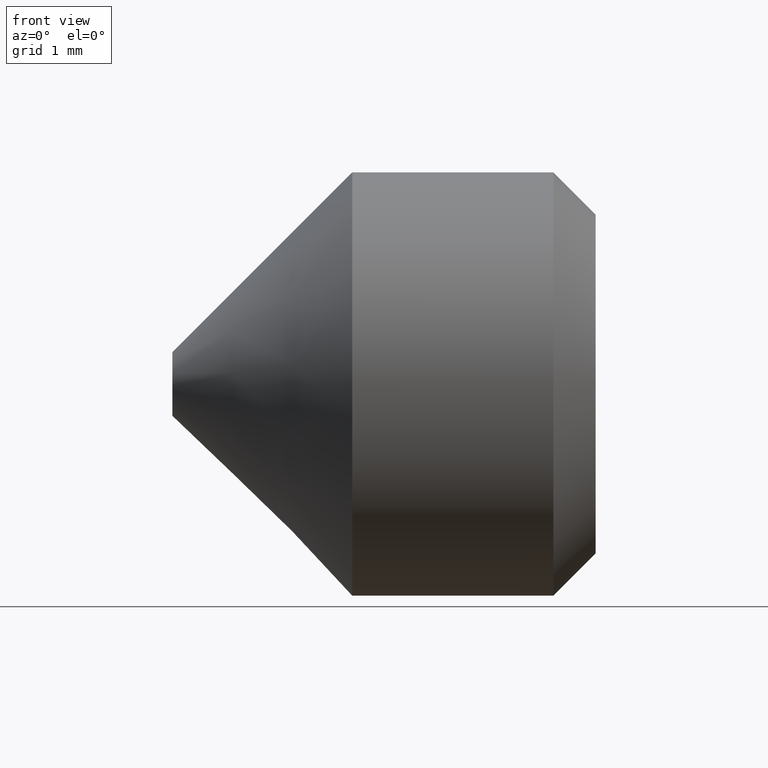
[diagram: clean part render]
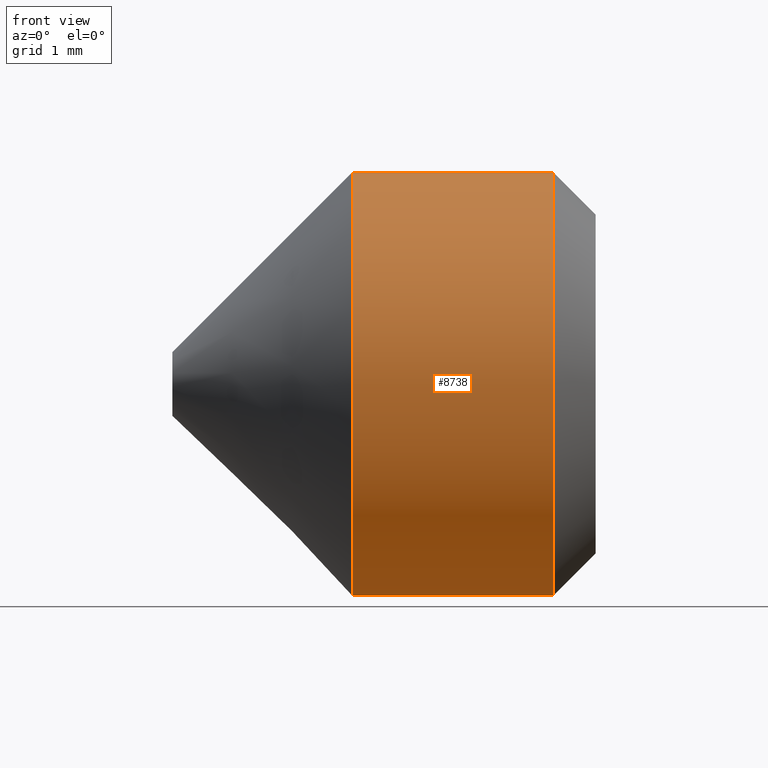
[diagram: same view with one face highlighted and labeled with its STEP entity id]
A machine part, front view. The second image highlights one B-rep face of the part: STEP entity #8738.
In plain terms, the highlighted cylindrical surface (bore or boss wall) has radius 3 mm, axis along (-1, -0, -0).
Its self-contained STEP definition (entity closure, byte-faithful):
#638 = DIRECTION ( 'NONE',  ( 0.0000000000000000000, 0.0000000000000000000, -1.000000000000000000 ) ) ;
#789 = EDGE_LOOP ( 'NONE', ( #6239 ) ) ;
#926 = CYLINDRICAL_SURFACE ( 'NONE', #8397, 3.000000000000000400 ) ;
#939 = CARTESIAN_POINT ( 'NONE',  ( 2.549999999999971000, 0.0000000000000000000, 0.0000000000000000000 ) ) ;
#1378 = AXIS2_PLACEMENT_3D ( 'NONE', #3950, #8122, #638 ) ;
#1866 = EDGE_LOOP ( 'NONE', ( #10400 ) ) ;
#1979 = FACE_OUTER_BOUND ( 'NONE', #789, .T. ) ;
#2183 = CIRCLE ( 'NONE', #1378, 3.000000000000000400 ) ;
#2530 = DIRECTION ( 'NONE',  ( -1.000000000000000000, -0.0000000000000000000, -0.0000000000000000000 ) ) ;
#3091 = CARTESIAN_POINT ( 'NONE',  ( 6.000000000000000000, 0.0000000000000000000, 0.0000000000000000000 ) ) ;
#3950 = CARTESIAN_POINT ( 'NONE',  ( 5.399999999999998600, 0.0000000000000000000, 0.0000000000000000000 ) ) ;
#5379 = EDGE_CURVE ( 'NONE', #9236, #9236, #2183, .T. ) ;
#5628 = VERTEX_POINT ( 'NONE', #10030 ) ;
#5786 = DIRECTION ( 'NONE',  ( 0.0000000000000000000, 0.0000000000000000000, 1.000000000000000000 ) ) ;
#6239 = ORIENTED_EDGE ( 'NONE', *, *, #5379, .T. ) ;
#6387 = DIRECTION ( 'NONE',  ( -1.000000000000000000, -0.0000000000000000000, -0.0000000000000000000 ) ) ;
#7486 = CARTESIAN_POINT ( 'NONE',  ( 5.399999999999998600, 0.0000000000000000000, -3.000000000000000400 ) ) ;
#7923 = EDGE_CURVE ( 'NONE', #5628, #5628, #8519, .T. ) ;
#8085 = FACE_OUTER_BOUND ( 'NONE', #1866, .T. ) ;
#8122 = DIRECTION ( 'NONE',  ( -1.000000000000000000, 0.0000000000000000000, 0.0000000000000000000 ) ) ;
#8147 = DIRECTION ( 'NONE',  ( 0.0000000000000000000, 0.0000000000000000000, 1.000000000000000000 ) ) ;
#8397 = AXIS2_PLACEMENT_3D ( 'NONE', #3091, #6387, #8147 ) ;
#8519 = CIRCLE ( 'NONE', #9302, 3.000000000000000400 ) ;
#8738 = ADVANCED_FACE ( 'NONE', ( #1979, #8085 ), #926, .T. ) ;
#9236 = VERTEX_POINT ( 'NONE', #7486 ) ;
#9302 = AXIS2_PLACEMENT_3D ( 'NONE', #939, #2530, #5786 ) ;
#10030 = CARTESIAN_POINT ( 'NONE',  ( 2.549999999999971000, 0.0000000000000000000, 3.000000000000000400 ) ) ;
#10400 = ORIENTED_EDGE ( 'NONE', *, *, #7923, .F. ) ;